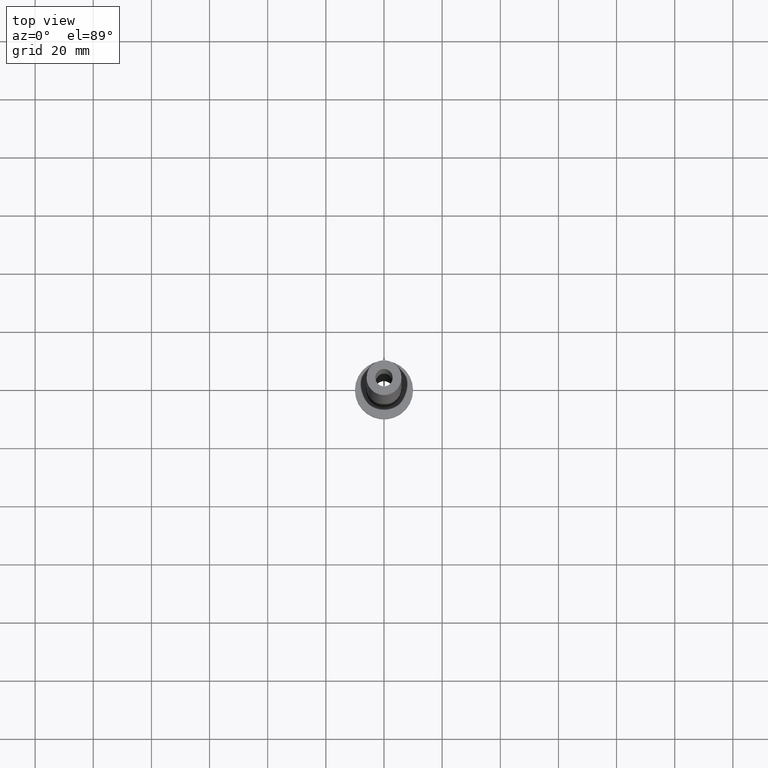
[diagram: clean part render]
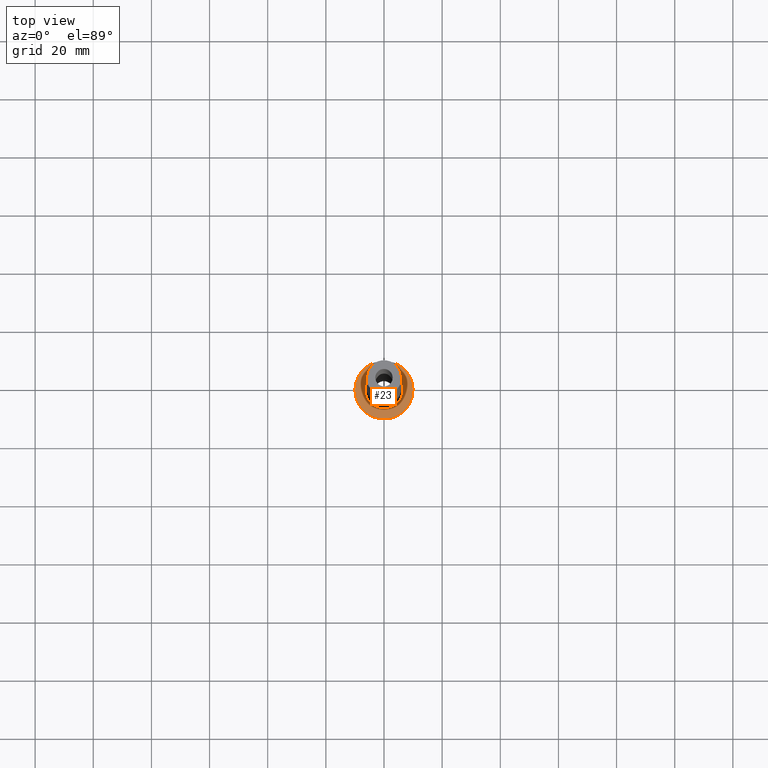
[diagram: same view with one face highlighted and labeled with its STEP entity id]
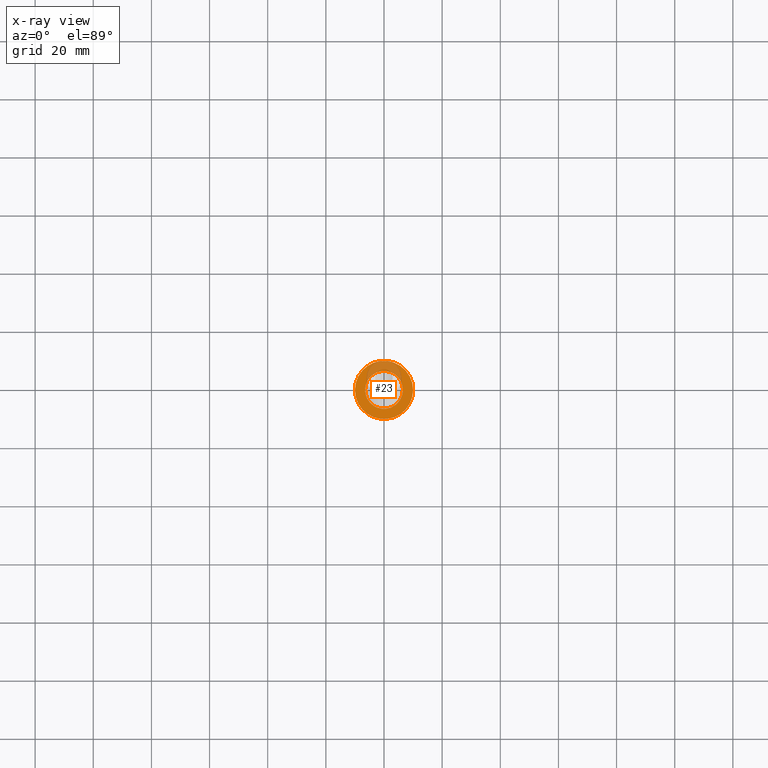
[diagram: x-ray of the same camera — body ghosted, the highlighted face saturated]
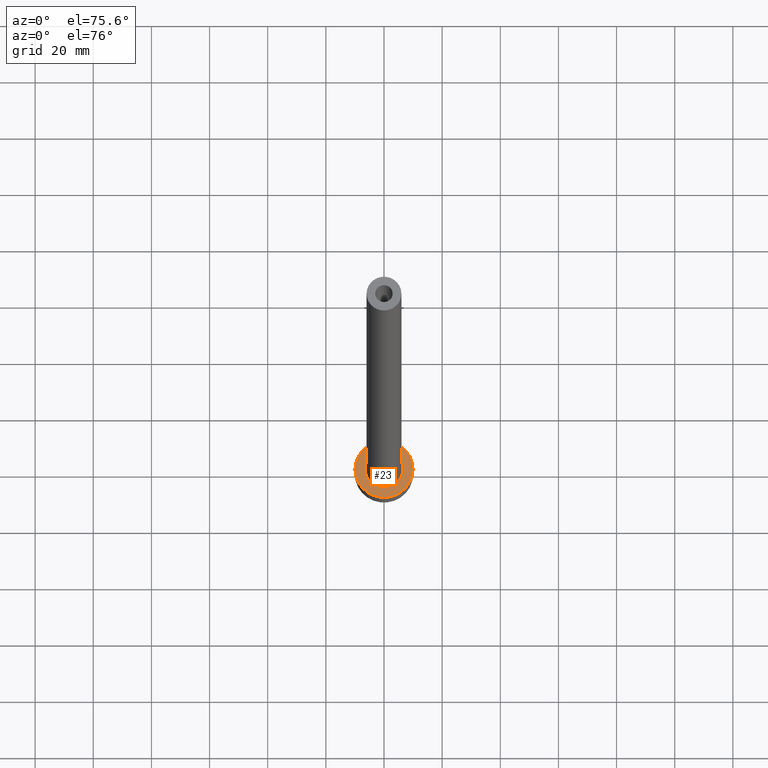
[diagram: same view with one face highlighted and labeled with its STEP entity id]
A machine part, top view. The second image highlights one B-rep face of the part: STEP entity #23.
The next image is the same camera in x-ray: the body ghosted, the highlighted face saturated — about 23% of this face is hidden behind the body in this view.
A second angle (auxiliary view) of the same face is appended — the face is thin or edge-on in the first view.
In plain terms, the highlighted planar face has unit normal (0, 0, 1).
Its self-contained STEP definition (entity closure, byte-faithful):
#19 = CARTESIAN_POINT ( 'NONE',  ( -10.00000000000000000, 0.000000000000000000, 7.000000000000000000 ) ) ;
#23 = ADVANCED_FACE ( 'NONE', ( #239, #270 ), #97, .T. ) ;
#25 = VERTEX_POINT ( 'NONE', #430 ) ;
#65 = CARTESIAN_POINT ( 'NONE',  ( 0.000000000000000000, 0.000000000000000000, 7.000000000000000000 ) ) ;
#89 = AXIS2_PLACEMENT_3D ( 'NONE', #65, #461, #136 ) ;
#97 = PLANE ( 'NONE',  #89 ) ;
#103 = EDGE_CURVE ( 'NONE', #459, #271, #385, .T. ) ;
#115 = DIRECTION ( 'NONE',  ( -0.000000000000000000, -0.000000000000000000, -1.000000000000000000 ) ) ;
#122 = DIRECTION ( 'NONE',  ( 0.000000000000000000, 0.000000000000000000, 1.000000000000000000 ) ) ;
#136 = DIRECTION ( 'NONE',  ( 1.000000000000000000, 0.000000000000000000, -0.000000000000000000 ) ) ;
#164 = DIRECTION ( 'NONE',  ( 1.000000000000000000, 0.000000000000000000, 0.000000000000000000 ) ) ;
#173 = EDGE_LOOP ( 'NONE', ( #382, #426 ) ) ;
#181 = AXIS2_PLACEMENT_3D ( 'NONE', #200, #247, #317 ) ;
#200 = CARTESIAN_POINT ( 'NONE',  ( 0.000000000000000000, 0.000000000000000000, 7.000000000000000000 ) ) ;
#213 = CIRCLE ( 'NONE', #230, 10.00000000000000000 ) ;
#219 = CARTESIAN_POINT ( 'NONE',  ( 0.000000000000000000, 0.000000000000000000, 7.000000000000000000 ) ) ;
#225 = EDGE_CURVE ( 'NONE', #303, #25, #441, .T. ) ;
#230 = AXIS2_PLACEMENT_3D ( 'NONE', #418, #122, #164 ) ;
#239 = FACE_BOUND ( 'NONE', #374, .T. ) ;
#241 = EDGE_CURVE ( 'NONE', #271, #459, #213, .T. ) ;
#247 = DIRECTION ( 'NONE',  ( 0.000000000000000000, 0.000000000000000000, 1.000000000000000000 ) ) ;
#254 = DIRECTION ( 'NONE',  ( 1.000000000000000000, 0.000000000000000000, 0.000000000000000000 ) ) ;
#270 = FACE_OUTER_BOUND ( 'NONE', #173, .T. ) ;
#271 = VERTEX_POINT ( 'NONE', #390 ) ;
#303 = VERTEX_POINT ( 'NONE', #364 ) ;
#317 = DIRECTION ( 'NONE',  ( 1.000000000000000000, 0.000000000000000000, 0.000000000000000000 ) ) ;
#320 = CIRCLE ( 'NONE', #327, 6.500000000000000888 ) ;
#327 = AXIS2_PLACEMENT_3D ( 'NONE', #219, #369, #409 ) ;
#352 = ORIENTED_EDGE ( 'NONE', *, *, #225, .T. ) ;
#356 = ORIENTED_EDGE ( 'NONE', *, *, #370, .T. ) ;
#364 = CARTESIAN_POINT ( 'NONE',  ( 6.500000000000000888, 0.000000000000000000, 7.000000000000002665 ) ) ;
#369 = DIRECTION ( 'NONE',  ( -0.000000000000000000, -0.000000000000000000, -1.000000000000000000 ) ) ;
#370 = EDGE_CURVE ( 'NONE', #25, #303, #320, .T. ) ;
#374 = EDGE_LOOP ( 'NONE', ( #352, #356 ) ) ;
#382 = ORIENTED_EDGE ( 'NONE', *, *, #103, .T. ) ;
#385 = CIRCLE ( 'NONE', #181, 10.00000000000000000 ) ;
#390 = CARTESIAN_POINT ( 'NONE',  ( 10.00000000000000000, 1.224646799147353256E-15, 7.000000000000000000 ) ) ;
#409 = DIRECTION ( 'NONE',  ( 1.000000000000000000, 0.000000000000000000, 0.000000000000000000 ) ) ;
#415 = AXIS2_PLACEMENT_3D ( 'NONE', #439, #115, #254 ) ;
#418 = CARTESIAN_POINT ( 'NONE',  ( 0.000000000000000000, 0.000000000000000000, 7.000000000000000000 ) ) ;
#426 = ORIENTED_EDGE ( 'NONE', *, *, #241, .T. ) ;
#430 = CARTESIAN_POINT ( 'NONE',  ( -6.500000000000000888, 7.960204194457796463E-16, 7.000000000000002665 ) ) ;
#439 = CARTESIAN_POINT ( 'NONE',  ( 0.000000000000000000, 0.000000000000000000, 7.000000000000000000 ) ) ;
#441 = CIRCLE ( 'NONE', #415, 6.500000000000000888 ) ;
#459 = VERTEX_POINT ( 'NONE', #19 ) ;
#461 = DIRECTION ( 'NONE',  ( 0.000000000000000000, 0.000000000000000000, 1.000000000000000000 ) ) ;